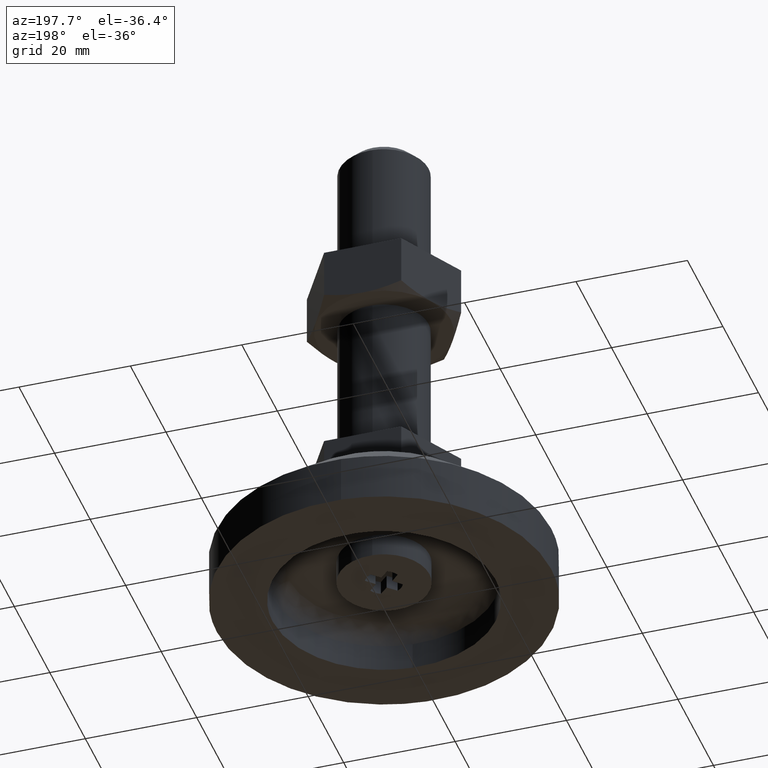
[diagram: clean part render]
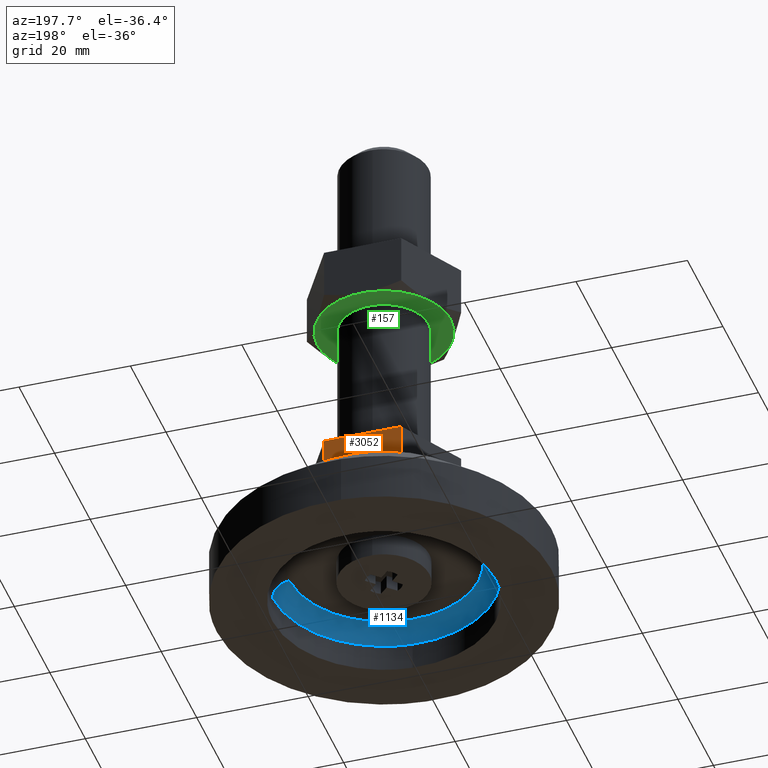
[diagram: same view with three faces highlighted in distinct colors, each labeled with its STEP entity id]
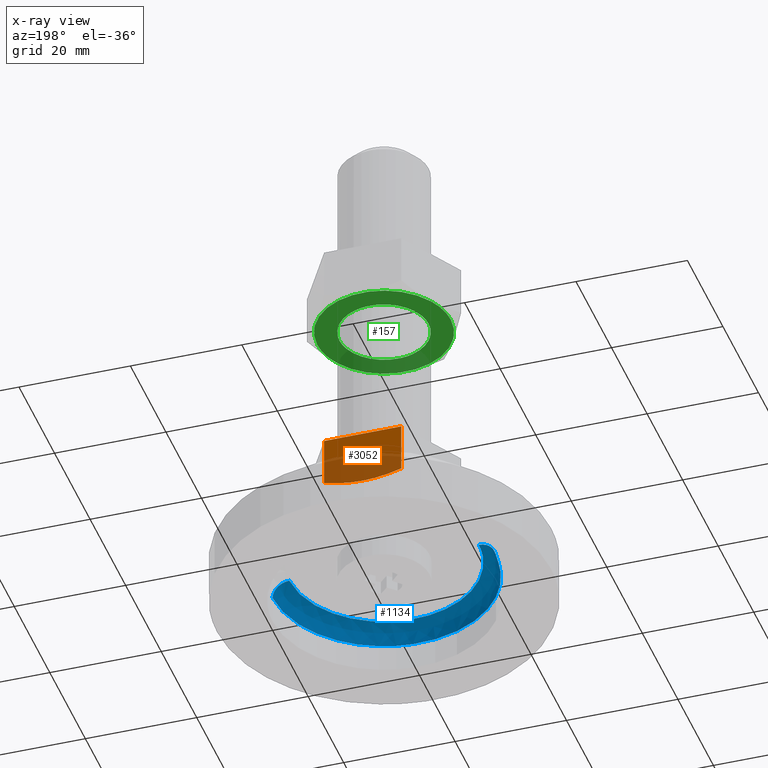
[diagram: x-ray of the same camera — body ghosted, the three highlighted faces saturated]
A machine part, auxiliary view with three faces highlighted in distinct colors.
The next image is the same camera in x-ray (body ghosted, the three faces saturated) — at least one of them is partly hidden behind the body in this view.
Their STEP definitions:

[orange] entity #3052 — the highlighted face is a freeform B-spline surface patch.
#2762=CARTESIAN_POINT('',(6.921797000000001,12.0,27.0));
#2763=VERTEX_POINT('',#2762);
#2764=CARTESIAN_POINT('',(-6.921797000000001,12.0,27.0));
#2765=VERTEX_POINT('',#2764);
#2766=CARTESIAN_POINT('',(6.921797000000001,12.0,27.0));
#2767=CARTESIAN_POINT('',(-6.921797000000001,12.0,27.0));
#2768=QUASI_UNIFORM_CURVE('',1,(#2766,#2767),.UNSPECIFIED.,.F.,.U.);
#2769=EDGE_CURVE('',#2763,#2765,#2768,.T.);
#2818=CARTESIAN_POINT('',(6.921797000000001,12.0,18.073646796981102));
#2819=VERTEX_POINT('',#2818);
#2841=CARTESIAN_POINT('',(6.921797000000001,12.0,27.0));
#2842=CARTESIAN_POINT('',(6.921797000000001,12.0,18.073646796981102));
#2843=QUASI_UNIFORM_CURVE('',1,(#2841,#2842),.UNSPECIFIED.,.F.,.U.);
#2844=EDGE_CURVE('',#2763,#2819,#2843,.T.);
#2982=CARTESIAN_POINT('',(-6.921797000000001,12.0,18.073646796981102));
#2983=VERTEX_POINT('',#2982);
#3012=CARTESIAN_POINT('',(-6.921797000000001,12.0,27.0));
#3013=CARTESIAN_POINT('',(-6.921797000000001,12.0,18.073646796981102));
#3014=QUASI_UNIFORM_CURVE('',1,(#3012,#3013),.UNSPECIFIED.,.F.,.U.);
#3015=EDGE_CURVE('',#2765,#2983,#3014,.T.);
#3020=CARTESIAN_POINT('',(-7.613284493468429,12.0,27.499315230271890));
#3021=CARTESIAN_POINT('',(-7.613284493468429,12.0,16.504383207378851));
#3022=CARTESIAN_POINT('',(7.613284864782555,12.0,27.499315230271890));
#3023=CARTESIAN_POINT('',(7.613284864782555,12.0,16.504383207378851));
#3024=B_SPLINE_SURFACE_WITH_KNOTS('',1,1,((#3020,#3022),(#3021,#3023)),.UNSPECIFIED.,.F.,.F.,.U.,(2,2),(2,2),(0.0,10.994932022893050),(0.0,15.226569358250989),.UNSPECIFIED.);
#3025=CARTESIAN_POINT('',(-6.921797000000001,12.0,18.073646796981102));
#3026=CARTESIAN_POINT('',(-6.358660324426976,12.0,17.911196017434531));
#3027=CARTESIAN_POINT('',(-5.790343191297215,12.0,17.762066278652121));
#3028=CARTESIAN_POINT('',(-4.640615515414147,12.0,17.497475225435291));
#3029=CARTESIAN_POINT('',(-4.064224947717325,12.0,17.383251962031011));
#3030=CARTESIAN_POINT('',(-2.908357873238041,12.0,17.197071511113521));
#3031=CARTESIAN_POINT('',(-2.328807218985752,12.0,17.125138279335339));
#3032=CARTESIAN_POINT('',(-1.166103339210498,12.0,17.028404816675710));
#3033=CARTESIAN_POINT('',(-0.582947442430045,12.0,17.003639534271969));
#3034=CARTESIAN_POINT('',(0.587159239858373,12.0,17.003758089595170));
#3035=CARTESIAN_POINT('',(1.174110774181518,12.0,17.028651724187711));
#3036=CARTESIAN_POINT('',(1.910142876343362,12.0,17.090418470358049));
#3037=CARTESIAN_POINT('',(2.057339841839589,12.0,17.104289639084961));
#3038=CARTESIAN_POINT('',(2.350644054811812,12.0,17.134879830849091));
#3039=CARTESIAN_POINT('',(2.789433234024576,12.0,17.185073760166500));
#3040=CARTESIAN_POINT('',(3.224847049230180,12.0,17.247728260586531));
#3041=CARTESIAN_POINT('',(4.669317161794012,12.0,17.482083020122730));
#3042=CARTESIAN_POINT('',(5.802870978181923,12.0,17.750864757764390));
#3043=CARTESIAN_POINT('',(6.921797000000025,12.0,18.073646796981009));
#3044=B_SPLINE_CURVE_WITH_KNOTS('',3,(#3025,#3026,#3027,#3028,#3029,#3030,#3031,#3032,#3033,#3034,#3035,#3036,#3037,#3038,#3039,#3040,#3041,#3042,#3043),.UNSPECIFIED.,.F.,.U.,(4,2,2,2,2,2,2,1,2,4),(0.0,0.125000000000000,0.250000000000000,0.375000000000000,0.500000000000000,0.625000000000000,0.656250000000000,0.687500000000000,0.750000000000000,1.0),.UNSPECIFIED.);
#3045=EDGE_CURVE('',#2983,#2819,#3044,.T.);
#3046=ORIENTED_EDGE('',*,*,#3045,.F.);
#3047=ORIENTED_EDGE('',*,*,#3015,.F.);
#3048=ORIENTED_EDGE('',*,*,#2769,.F.);
#3049=ORIENTED_EDGE('',*,*,#2844,.T.);
#3050=EDGE_LOOP('',(#3046,#3047,#3048,#3049));
#3051=FACE_OUTER_BOUND('',#3050,.T.);
#3052=ADVANCED_FACE('',(#3051),#3024,.F.);

[blue] entity #1134 — the highlighted face is a freeform B-spline surface patch.
#909=CARTESIAN_POINT('',(-17.000000000369681,-1.770490E-015,8.0));
#910=VERTEX_POINT('',#909);
#911=CARTESIAN_POINT('',(17.000000000369681,8.852452E-016,8.0));
#912=VERTEX_POINT('',#911);
#941=CARTESIAN_POINT('',(17.000000000369681,8.852452E-016,8.0));
#942=CARTESIAN_POINT('',(17.000034106062490,-0.799699869839131,7.999999999999981));
#943=CARTESIAN_POINT('',(16.886939500630309,-2.399105655206792,8.000000000000068));
#944=CARTESIAN_POINT('',(16.396272192245931,-4.682385691423463,7.999999999999939));
#945=CARTESIAN_POINT('',(15.567571019487900,-6.976283789786952,8.000000000000078));
#946=CARTESIAN_POINT('',(14.515224415382789,-8.945068886102856,8.000000000000048));
#947=CARTESIAN_POINT('',(13.012339714260939,-11.037866012158609,7.999999999999878));
#948=CARTESIAN_POINT('',(11.042860368201980,-13.068933398826070,8.000000000000028));
#949=CARTESIAN_POINT('',(8.598392158148085,-14.756990606929820,7.999999999999997));
#950=CARTESIAN_POINT('',(6.421855209560081,-15.778056103894651,8.000000000000069));
#951=CARTESIAN_POINT('',(4.313170713750567,-16.496350986834351,7.999999999999923));
#952=CARTESIAN_POINT('',(2.019926455550548,-16.952511629002160,8.000000000000119));
#953=CARTESIAN_POINT('',(-0.453778818586481,-17.043556273063519,8.000000000000004));
#954=CARTESIAN_POINT('',(-2.915476804315424,-16.808772590171770,8.000000000000023));
#955=CARTESIAN_POINT('',(-5.322692171695342,-16.221492765686289,7.999999999999975));
#956=CARTESIAN_POINT('',(-7.539512047495441,-15.287200300316570,8.000000000000011));
#957=CARTESIAN_POINT('',(-9.679154581651927,-14.049036375419460,7.999999999999997));
#958=CARTESIAN_POINT('',(-11.651596653153881,-12.490188448116660,7.999999999999996));
#959=CARTESIAN_POINT('',(-13.472059912929160,-10.469092287088319,8.000000000000018));
#960=CARTESIAN_POINT('',(-14.724993227355970,-8.581352111634717,7.999999999999918));
#961=CARTESIAN_POINT('',(-15.798609050196010,-6.432156941869749,8.000000000000291));
#962=CARTESIAN_POINT('',(-16.727008741143990,-3.650752939567477,7.999999999999059));
#963=CARTESIAN_POINT('',(-17.000285523553789,-1.321271574456802,8.000000000001178));
#964=CARTESIAN_POINT('',(-17.000000000369681,-1.770490E-015,8.0));
#965=B_SPLINE_CURVE_WITH_KNOTS('',3,(#941,#942,#943,#944,#945,#946,#947,#948,#949,#950,#951,#952,#953,#954,#955,#956,#957,#958,#959,#960,#961,#962,#963,#964),.UNSPECIFIED.,.F.,.U.,(4,1,1,1,1,1,1,1,1,1,1,1,1,1,1,1,1,1,1,1,1,4),(0.000000139350576,2.399098668892371,4.798253554246301,6.988815815027543,9.700907059741773,11.474193056390920,14.707834687267320,18.150118543008290,20.340656598634808,21.905309837947989,24.826035630657319,27.329388098275551,29.311348378257520,32.232033251098073,34.735508087946222,36.508795828822421,39.638124844979792,42.245911165283800,44.645074103295499,46.418361219424419,49.443394925572207,53.407158891821652),.UNSPECIFIED.);
#966=EDGE_CURVE('',#912,#910,#965,.T.);
#1006=CARTESIAN_POINT('',(-20.0,-1.770216E-015,5.000000000061123));
#1007=VERTEX_POINT('',#1006);
#1008=CARTESIAN_POINT('',(-17.000000000369674,-3.540981E-015,8.0));
#1009=CARTESIAN_POINT('',(-19.999999999938872,-3.497002E-015,7.999999999630319));
#1010=CARTESIAN_POINT('',(-19.999999999999996,-3.540432E-015,5.000000000061123));
#1018=(BOUNDED_CURVE()B_SPLINE_CURVE(2,(#1008,#1009,#1010),.UNSPECIFIED.,.F.,.U.)B_SPLINE_CURVE_WITH_KNOTS((3,3),(-1.736413120944634,-0.276558718036208),.UNSPECIFIED.)CURVE()GEOMETRIC_REPRESENTATION_ITEM()RATIONAL_B_SPLINE_CURVE((0.888510409016795,0.626638727263777,0.883897567131271))REPRESENTATION_ITEM(''));
#1019=EDGE_CURVE('',#910,#1007,#1018,.T.);
#1036=CARTESIAN_POINT('',(20.0,8.851079E-016,5.000000000061122));
#1037=VERTEX_POINT('',#1036);
#1053=CARTESIAN_POINT('',(17.000000000369688,1.770490E-015,7.999999999999999));
#1054=CARTESIAN_POINT('',(19.999999999938883,1.748501E-015,7.999999999630314));
#1055=CARTESIAN_POINT('',(19.999999999999996,1.770216E-015,5.000000000061123));
#1063=(BOUNDED_CURVE()B_SPLINE_CURVE(2,(#1053,#1054,#1055),.UNSPECIFIED.,.F.,.U.)B_SPLINE_CURVE_WITH_KNOTS((3,3),(-1.736413120944632,-0.276558718036208),.UNSPECIFIED.)CURVE()GEOMETRIC_REPRESENTATION_ITEM()RATIONAL_B_SPLINE_CURVE((0.888510409016794,0.626638727263777,0.883897567131271))REPRESENTATION_ITEM(''));
#1064=EDGE_CURVE('',#912,#1037,#1063,.T.);
#1070=CARTESIAN_POINT('',(16.791948273606025,0.469448093220446,7.992777051359569));
#1071=CARTESIAN_POINT('',(16.791948273606025,0.236091020692337,7.992777051359569));
#1072=CARTESIAN_POINT('',(16.791948273606021,-16.791948273606021,7.992777051359571));
#1073=CARTESIAN_POINT('',(2.056353E-015,-16.791948273606025,7.992777051359570));
#1074=CARTESIAN_POINT('',(-16.791948273606021,-16.791948273606021,7.992777051359571));
#1075=CARTESIAN_POINT('',(-16.791948273606025,0.236091020692338,7.992777051359569));
#1076=CARTESIAN_POINT('',(-16.791948273606017,0.469448093220453,7.992777051359569));
#1077=CARTESIAN_POINT('',(20.233217815759900,0.565654763137422,8.232007056450280));
#1078=CARTESIAN_POINT('',(20.233217815759907,0.284474497430506,8.232007056450279));
#1079=CARTESIAN_POINT('',(20.233217815759904,-20.233217815759904,8.232007056450279));
#1080=CARTESIAN_POINT('',(2.477773E-015,-20.233217815759915,8.232007056450280));
#1081=CARTESIAN_POINT('',(-20.233217815759897,-20.233217815759911,8.232007056450279));
#1082=CARTESIAN_POINT('',(-20.233217815759904,0.284474497430507,8.232007056450279));
#1083=CARTESIAN_POINT('',(-20.233217815759915,0.565654763137429,8.232007056450280));
#1084=CARTESIAN_POINT('',(19.992698916677771,0.558930639365848,4.790827358109025));
#1085=CARTESIAN_POINT('',(19.992698916677767,0.281092855738020,4.790827358109024));
#1086=CARTESIAN_POINT('',(19.992698916677767,-19.992698916677767,4.790827358109024));
#1087=CARTESIAN_POINT('',(2.448319E-015,-19.992698916677771,4.790827358109024));
#1088=CARTESIAN_POINT('',(-19.992698916677767,-19.992698916677785,4.790827358109024));
#1089=CARTESIAN_POINT('',(-19.992698916677778,0.281092855738021,4.790827358109024));
#1090=CARTESIAN_POINT('',(-19.992698916677778,0.558930639365856,4.790827358109024));
#1098=(BOUNDED_SURFACE()B_SPLINE_SURFACE(2,2,((#1070,#1077,#1084),(#1071,#1078,#1085),(#1072,#1079,#1086),(#1073,#1080,#1087),(#1074,#1081,#1088),(#1075,#1082,#1089),(#1076,#1083,#1090)),.UNSPECIFIED.,.F.,.F.,.U.)B_SPLINE_SURFACE_WITH_KNOTS((3,1,2,1,3),(3,3),(0.0,0.662499763178371,33.787487922097640,66.912476081016905,67.574975844195293),(0.0,5.468181530991069),.UNSPECIFIED.)GEOMETRIC_REPRESENTATION_ITEM()RATIONAL_B_SPLINE_SURFACE(((0.926697838400259,0.606435486919035,0.921564728292852),(0.921332230155912,0.602924207283492,0.916228840909793),(0.647686209694202,0.423848945870745,0.644098584373797),(0.915966621911565,0.599412927647948,0.910892953526734),(0.647686209694202,0.423848945870745,0.644098584373797),(0.921332230155912,0.602924207283492,0.916228840909793),(0.926697838400259,0.606435486919036,0.921564728292852)))REPRESENTATION_ITEM('')SURFACE());
#1099=ORIENTED_EDGE('',*,*,#1019,.F.);
#1100=ORIENTED_EDGE('',*,*,#966,.F.);
#1101=ORIENTED_EDGE('',*,*,#1064,.T.);
#1102=CARTESIAN_POINT('',(1.220964706898110,-19.962696340536560,5.000000000061059));
#1103=VERTEX_POINT('',#1102);
#1104=CARTESIAN_POINT('',(20.0,8.851079E-016,5.000000000061122));
#1105=CARTESIAN_POINT('',(19.999999999999964,-18.814127082590030,5.000000000061090));
#1106=CARTESIAN_POINT('',(1.220964706898110,-19.962696340536564,5.000000000061059));
#1114=(BOUNDED_CURVE()B_SPLINE_CURVE(2,(#1104,#1105,#1106),.UNSPECIFIED.,.F.,.U.)B_SPLINE_CURVE_WITH_KNOTS((3,3),(0.500000000000000,0.739333014827052),.UNSPECIFIED.)CURVE()GEOMETRIC_REPRESENTATION_ITEM()RATIONAL_B_SPLINE_CURVE((1.0,0.719603931675908,0.976072154373071))REPRESENTATION_ITEM(''));
#1115=EDGE_CURVE('',#1037,#1103,#1114,.T.);
#1116=ORIENTED_EDGE('',*,*,#1115,.T.);
#1117=CARTESIAN_POINT('',(1.220964706898110,-19.962696340536564,5.000000000061059));
#1118=CARTESIAN_POINT('',(0.611052215543085,-19.999999999999083,5.000000000061060));
#1119=CARTESIAN_POINT('',(-6.076020E-014,-19.999999999999101,5.000000000061061));
#1120=CARTESIAN_POINT('',(-20.000000000000028,-19.999999999999574,5.000000000061093));
#1121=CARTESIAN_POINT('',(-20.0,-1.770216E-015,5.000000000061123));
#1129=(BOUNDED_CURVE()B_SPLINE_CURVE(2,(#1117,#1118,#1119,#1120,#1121),.UNSPECIFIED.,.F.,.U.)B_SPLINE_CURVE_WITH_KNOTS((3,2,3),(0.739333014827052,0.750000000000000,1.0),.UNSPECIFIED.)CURVE()GEOMETRIC_REPRESENTATION_ITEM()RATIONAL_B_SPLINE_CURVE((0.976072154373071,0.987502849510639,1.0,0.707106781186548,1.0))REPRESENTATION_ITEM(''));
#1130=EDGE_CURVE('',#1103,#1007,#1129,.T.);
#1131=ORIENTED_EDGE('',*,*,#1130,.T.);
#1132=EDGE_LOOP('',(#1099,#1100,#1101,#1116,#1131));
#1133=FACE_OUTER_BOUND('',#1132,.T.);
#1134=ADVANCED_FACE('',(#1133),#1098,.F.);

[green] entity #157 — the highlighted face is a freeform B-spline surface patch.
#5=CARTESIAN_POINT('',(-13.191753614188199,13.191556369859031,57.0));
#6=CARTESIAN_POINT('',(13.191754257574701,13.191556369859031,57.0));
#7=CARTESIAN_POINT('',(-13.191753614188199,-13.191556155396860,57.0));
#8=CARTESIAN_POINT('',(13.191754257574701,-13.191556155396860,57.0));
#9=B_SPLINE_SURFACE_WITH_KNOTS('',1,1,((#5,#7),(#6,#8)),.UNSPECIFIED.,.F.,.F.,.U.,(2,2),(2,2),(0.0,26.383507871762902),(0.0,26.383112525255889),.UNSPECIFIED.);
#10=CARTESIAN_POINT('',(-11.993593654586800,0.0,57.0));
#11=VERTEX_POINT('',#10);
#12=CARTESIAN_POINT('',(-10.331591385341691,6.091346993704654,57.000000000000909));
#13=VERTEX_POINT('',#12);
#14=CARTESIAN_POINT('',(-11.993593654586800,0.0,57.0));
#15=CARTESIAN_POINT('',(-11.993593654587452,3.272409188139934,57.000000000000469));
#16=CARTESIAN_POINT('',(-10.331591385341685,6.091346993704654,57.000000000000909));
#24=(BOUNDED_CURVE()B_SPLINE_CURVE(2,(#14,#15,#16),.UNSPECIFIED.,.F.,.U.)B_SPLINE_CURVE_WITH_KNOTS((3,3),(0.0,0.086670559869720),.UNSPECIFIED.)CURVE()GEOMETRIC_REPRESENTATION_ITEM()RATIONAL_B_SPLINE_CURVE((1.0,0.898459122973575,0.867323083239491))REPRESENTATION_ITEM(''));
#25=EDGE_CURVE('',#11,#13,#24,.T.);
#26=ORIENTED_EDGE('',*,*,#25,.T.);
#27=CARTESIAN_POINT('',(11.993593654586800,0.0,57.0));
#28=VERTEX_POINT('',#27);
#29=CARTESIAN_POINT('',(-10.331591385341691,6.091346993704654,57.000000000000909));
#30=CARTESIAN_POINT('',(-9.979869663417196,6.688004326482488,57.000000000000817));
#31=CARTESIAN_POINT('',(-9.243880270346166,7.720229784808979,57.000000000001101));
#32=CARTESIAN_POINT('',(-8.069310827956228,8.913919111238311,57.000000000000647));
#33=CARTESIAN_POINT('',(-6.791494645350134,9.928797083685335,57.000000000001613));
#34=CARTESIAN_POINT('',(-5.528336405346432,10.683766035386180,56.999999999999069));
#35=CARTESIAN_POINT('',(-3.954375877702985,11.360806935038880,57.000000000002927));
#36=CARTESIAN_POINT('',(-2.183429771975694,11.858193134415581,56.999999999999737));
#37=CARTESIAN_POINT('',(-0.186849458099053,12.049236214024800,57.000000000000703));
#38=CARTESIAN_POINT('',(1.727799155559756,11.909666968476630,57.000000000000647));
#39=CARTESIAN_POINT('',(3.603211214861499,11.499402945391850,57.000000000000220));
#40=CARTESIAN_POINT('',(5.349303771180010,10.794764287023350,57.000000000000718));
#41=CARTESIAN_POINT('',(7.023615997729507,9.775964740068199,57.0));
#42=CARTESIAN_POINT('',(8.531464499158014,8.520438263430394,57.000000000000433));
#43=CARTESIAN_POINT('',(9.873259036206939,6.921181012579576,57.000000000000050));
#44=CARTESIAN_POINT('',(10.827367890005680,5.253585038082036,57.000000000000277));
#45=CARTESIAN_POINT('',(11.503693601587750,3.545801458053218,56.999999999998600));
#46=CARTESIAN_POINT('',(11.903374765626280,1.833359969012870,57.000000000004597));
#47=CARTESIAN_POINT('',(11.993610404719041,0.570369080437749,56.999999999993079));
#48=CARTESIAN_POINT('',(11.993593654586800,0.0,57.0));
#49=B_SPLINE_CURVE_WITH_KNOTS('',3,(#29,#30,#31,#32,#33,#34,#35,#36,#37,#38,#39,#40,#41,#42,#43,#44,#45,#46,#47,#48),.UNSPECIFIED.,.F.,.U.,(4,1,1,1,1,1,1,1,1,1,1,1,1,1,1,1,1,4),(0.000000053719699,2.077834093876557,3.789004018263409,5.011265836994671,6.966896176418690,8.189157995199878,10.144789986286890,12.467005018404601,14.178173205288330,15.889357593492250,18.211633138927169,19.800590742543069,21.756205390623229,24.078515789983541,26.034114878609561,27.500852671895551,29.578705572233641,31.289823089188861),.UNSPECIFIED.);
#50=EDGE_CURVE('',#13,#28,#49,.T.);
#51=ORIENTED_EDGE('',*,*,#50,.T.);
#52=CARTESIAN_POINT('',(10.331591385341680,-6.091346993704656,57.000000000000909));
#53=VERTEX_POINT('',#52);
#54=CARTESIAN_POINT('',(11.993593654586800,0.0,57.0));
#55=CARTESIAN_POINT('',(11.993593654587452,-3.272409188139935,57.000000000000469));
#56=CARTESIAN_POINT('',(10.331591385341683,-6.091346993704656,57.000000000000909));
#64=(BOUNDED_CURVE()B_SPLINE_CURVE(2,(#54,#55,#56),.UNSPECIFIED.,.F.,.U.)B_SPLINE_CURVE_WITH_KNOTS((3,3),(0.500000000000000,0.586670559869720),.UNSPECIFIED.)CURVE()GEOMETRIC_REPRESENTATION_ITEM()RATIONAL_B_SPLINE_CURVE((1.0,0.898459122973575,0.867323083239491))REPRESENTATION_ITEM(''));
#65=EDGE_CURVE('',#28,#53,#64,.T.);
#66=ORIENTED_EDGE('',*,*,#65,.T.);
#67=CARTESIAN_POINT('',(10.331591385341680,-6.091346993704656,57.000000000000909));
#68=CARTESIAN_POINT('',(9.814517539690630,-6.968926169044003,57.000000000000959));
#69=CARTESIAN_POINT('',(8.882293873980856,-8.169052670707172,57.000000000000767));
#70=CARTESIAN_POINT('',(7.228251027772677,-9.625989362397750,57.000000000001009));
#71=CARTESIAN_POINT('',(5.786313034186334,-10.559203129551340,57.000000000000483));
#72=CARTESIAN_POINT('',(4.221471072536335,-11.260794972750240,57.000000000001222));
#73=CARTESIAN_POINT('',(2.463567368138484,-11.793439916842599,57.000000000000121));
#74=CARTESIAN_POINT('',(0.474076470087988,-12.055693783687421,57.000000000001407));
#75=CARTESIAN_POINT('',(-1.771420743734388,-11.926548159215679,56.999999999999702));
#76=CARTESIAN_POINT('',(-3.760474762159498,-11.448627019576630,57.000000000000441));
#77=CARTESIAN_POINT('',(-5.563952823290329,-10.677724194165471,57.000000000000682));
#78=CARTESIAN_POINT('',(-7.090277932662730,-9.727574493320205,57.000000000000107));
#79=CARTESIAN_POINT('',(-8.272805311489078,-8.722215573598664,57.000000000000497));
#80=CARTESIAN_POINT('',(-9.522638190384596,-7.378188378078814,56.999999999998721));
#81=CARTESIAN_POINT('',(-10.550731122166640,-5.846295730583675,57.000000000003823));
#82=CARTESIAN_POINT('',(-11.311604509454099,-4.083732967587257,56.999999999997101));
#83=CARTESIAN_POINT('',(-11.842155295621010,-2.240708960799489,56.999999999994913));
#84=CARTESIAN_POINT('',(-11.993759821857310,-0.896328539811220,57.000000000010260));
#85=CARTESIAN_POINT('',(-11.993593654586800,0.0,57.0));
#86=B_SPLINE_CURVE_WITH_KNOTS('',3,(#67,#68,#69,#70,#71,#72,#73,#74,#75,#76,#77,#78,#79,#80,#81,#82,#83,#84,#85),.UNSPECIFIED.,.F.,.U.,(4,1,1,1,1,1,1,1,1,1,1,1,1,1,1,1,4),(0.000000053717383,3.055648042819414,4.522370151702258,6.600199124315722,8.189157995198126,9.655879794900226,12.100365179981640,14.178173205286971,16.378224662865581,18.211633138926310,20.045033527208808,21.756205390622679,22.856247237977829,25.545234955861758,27.256407576323060,28.600879995911178,31.289823089188872),.UNSPECIFIED.);
#87=EDGE_CURVE('',#53,#11,#86,.T.);
#88=ORIENTED_EDGE('',*,*,#87,.T.);
#89=EDGE_LOOP('',(#26,#51,#66,#88));
#90=FACE_OUTER_BOUND('',#89,.T.);
#91=CARTESIAN_POINT('',(8.0,0.0,57.0));
#92=VERTEX_POINT('',#91);
#93=CARTESIAN_POINT('',(0.627672765927532,7.975338669856777,56.999999999999993));
#94=VERTEX_POINT('',#93);
#95=CARTESIAN_POINT('',(8.0,0.0,57.0));
#96=CARTESIAN_POINT('',(8.0,7.395123933168205,56.999999999999993));
#97=CARTESIAN_POINT('',(0.627672765927532,7.975338669856778,57.000000000000007));
#105=(BOUNDED_CURVE()B_SPLINE_CURVE(2,(#95,#96,#97),.UNSPECIFIED.,.F.,.U.)B_SPLINE_CURVE_WITH_KNOTS((3,3),(0.500000000000000,0.736331300630515),.UNSPECIFIED.)CURVE()GEOMETRIC_REPRESENTATION_ITEM()RATIONAL_B_SPLINE_CURVE((1.0,0.723120658607835,0.969723356167116))REPRESENTATION_ITEM(''));
#106=EDGE_CURVE('',#92,#94,#105,.T.);
#107=ORIENTED_EDGE('',*,*,#106,.T.);
#108=CARTESIAN_POINT('',(-8.0,0.0,57.0));
#109=VERTEX_POINT('',#108);
#110=CARTESIAN_POINT('',(0.627672765927532,7.975338669856778,57.000000000000007));
#111=CARTESIAN_POINT('',(0.314320856113986,8.0,57.0));
#112=CARTESIAN_POINT('',(0.0,8.0,57.0));
#113=CARTESIAN_POINT('',(-8.0,8.0,57.000000000000014));
#114=CARTESIAN_POINT('',(-8.0,0.0,57.0));
#122=(BOUNDED_CURVE()B_SPLINE_CURVE(2,(#110,#111,#112,#113,#114),.UNSPECIFIED.,.F.,.U.)B_SPLINE_CURVE_WITH_KNOTS((3,2,3),(0.736331300630515,0.750000000000000,1.0),.UNSPECIFIED.)CURVE()GEOMETRIC_REPRESENTATION_ITEM()RATIONAL_B_SPLINE_CURVE((0.969723356167116,0.983986122578712,1.0,0.707106781186548,1.0))REPRESENTATION_ITEM(''));
#123=EDGE_CURVE('',#94,#109,#122,.T.);
#124=ORIENTED_EDGE('',*,*,#123,.T.);
#125=CARTESIAN_POINT('',(-0.627672765927531,-7.975338669856777,57.0));
#126=VERTEX_POINT('',#125);
#127=CARTESIAN_POINT('',(-8.0,0.0,57.0));
#128=CARTESIAN_POINT('',(-8.0,-7.395123933168208,56.999999999999993));
#129=CARTESIAN_POINT('',(-0.627672765927531,-7.975338669856778,57.000000000000007));
#137=(BOUNDED_CURVE()B_SPLINE_CURVE(2,(#127,#128,#129),.UNSPECIFIED.,.F.,.U.)B_SPLINE_CURVE_WITH_KNOTS((3,3),(0.0,0.236331300630515),.UNSPECIFIED.)CURVE()GEOMETRIC_REPRESENTATION_ITEM()RATIONAL_B_SPLINE_CURVE((1.0,0.723120658607835,0.969723356167116))REPRESENTATION_ITEM(''));
#138=EDGE_CURVE('',#109,#126,#137,.T.);
#139=ORIENTED_EDGE('',*,*,#138,.T.);
#140=CARTESIAN_POINT('',(-0.627672765927531,-7.975338669856778,57.000000000000007));
#141=CARTESIAN_POINT('',(-0.314320856113986,-8.0,57.0));
#142=CARTESIAN_POINT('',(0.0,-8.0,57.0));
#143=CARTESIAN_POINT('',(8.0,-8.0,57.000000000000014));
#144=CARTESIAN_POINT('',(8.0,0.0,57.0));
#152=(BOUNDED_CURVE()B_SPLINE_CURVE(2,(#140,#141,#142,#143,#144),.UNSPECIFIED.,.F.,.U.)B_SPLINE_CURVE_WITH_KNOTS((3,2,3),(0.236331300630515,0.250000000000000,0.500000000000000),.UNSPECIFIED.)CURVE()GEOMETRIC_REPRESENTATION_ITEM()RATIONAL_B_SPLINE_CURVE((0.969723356167116,0.983986122578712,1.0,0.707106781186548,1.0))REPRESENTATION_ITEM(''));
#153=EDGE_CURVE('',#126,#92,#152,.T.);
#154=ORIENTED_EDGE('',*,*,#153,.T.);
#155=EDGE_LOOP('',(#107,#124,#139,#154));
#156=FACE_BOUND('',#155,.T.);
#157=ADVANCED_FACE('',(#90,#156),#9,.T.);